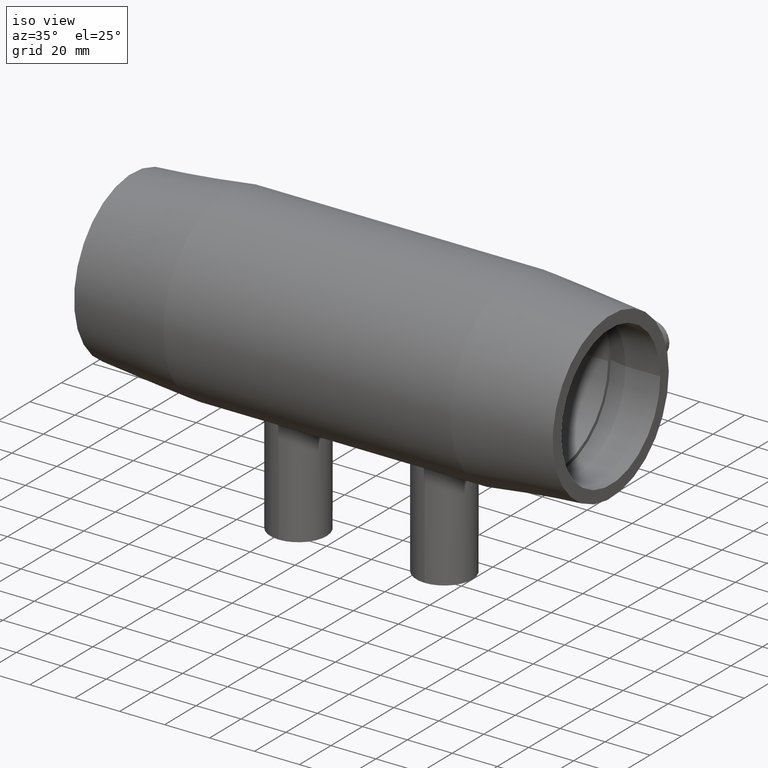
[diagram: clean part render]
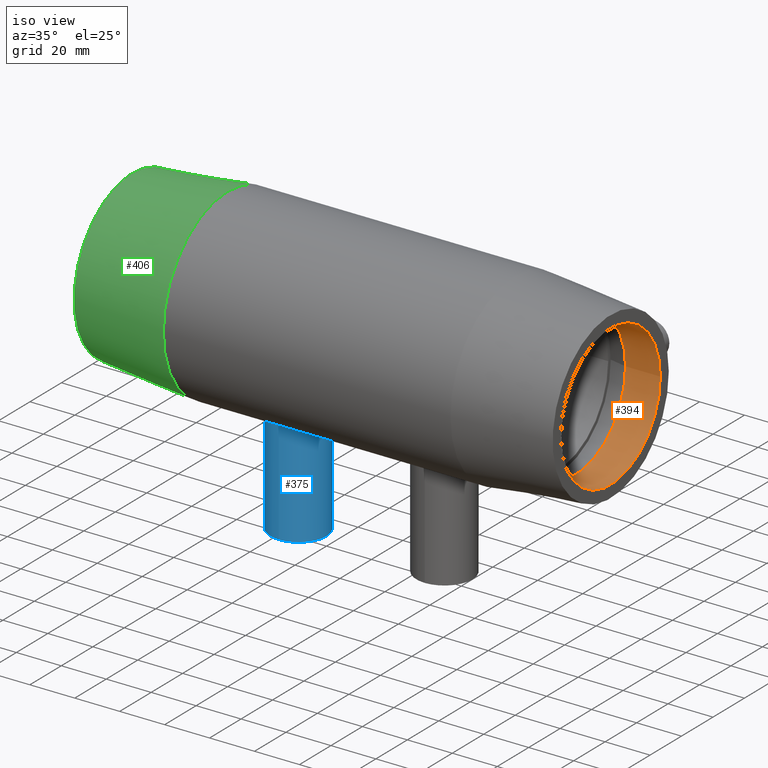
[diagram: same view with three faces highlighted in distinct colors, each labeled with its STEP entity id]
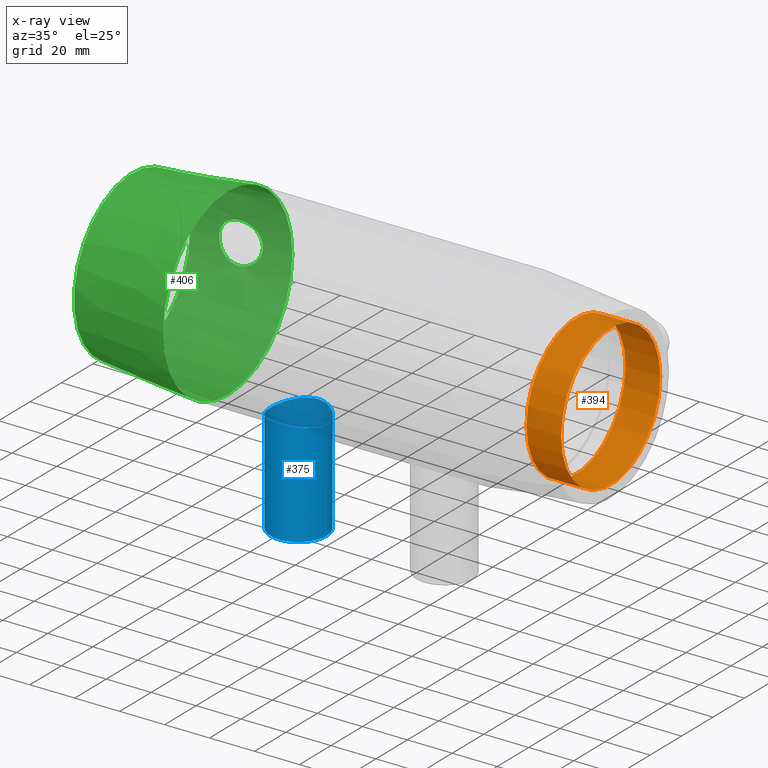
[diagram: x-ray of the same camera — body ghosted, the three highlighted faces saturated]
A machine part, iso view with three faces highlighted in distinct colors.
The next image is the same camera in x-ray (body ghosted, the three faces saturated) — at least one of them is partly hidden behind the body in this view.
Their STEP definitions:

[orange] entity #394 — the highlighted cylindrical surface (bore or boss wall) has radius 31.5 mm, axis along (1, 0, 0).
#57=FACE_BOUND('',#181,.T.);
#90=CIRCLE('',#447,31.5);
#91=CIRCLE('',#449,31.5);
#124=FACE_OUTER_BOUND('',#180,.T.);
#180=EDGE_LOOP('',(#330));
#181=EDGE_LOOP('',(#331));
#238=VERTEX_POINT('',#869);
#239=VERTEX_POINT('',#872);
#274=EDGE_CURVE('',#238,#238,#90,.T.);
#275=EDGE_CURVE('',#239,#239,#91,.T.);
#330=ORIENTED_EDGE('',*,*,#275,.F.);
#331=ORIENTED_EDGE('',*,*,#274,.T.);
#368=CYLINDRICAL_SURFACE('',#448,31.5);
#394=ADVANCED_FACE('',(#124,#57),#368,.F.);
#447=AXIS2_PLACEMENT_3D('',#870,#551,#552);
#448=AXIS2_PLACEMENT_3D('',#871,#553,#554);
#449=AXIS2_PLACEMENT_3D('',#873,#555,#556);
#551=DIRECTION('center_axis',(1.,0.,0.));
#552=DIRECTION('ref_axis',(0.,0.,-1.));
#553=DIRECTION('center_axis',(1.,0.,0.));
#554=DIRECTION('ref_axis',(0.,1.,0.));
#555=DIRECTION('center_axis',(1.,0.,0.));
#556=DIRECTION('ref_axis',(0.,0.,-1.));
#869=CARTESIAN_POINT('',(106.5,31.5,0.));
#870=CARTESIAN_POINT('Origin',(106.5,0.,0.));
#871=CARTESIAN_POINT('Origin',(98.7666666666667,0.,0.));
#872=CARTESIAN_POINT('',(91.0333333333333,31.5,0.));
#873=CARTESIAN_POINT('Origin',(91.0333333333334,0.,0.));

[blue] entity #375 — the highlighted cylindrical surface (bore or boss wall) has radius 12.5 mm, axis along (0, 0, 1).
#37=FACE_BOUND('',#142,.T.);
#75=CIRCLE('',#414,12.5);
#105=FACE_OUTER_BOUND('',#141,.T.);
#141=EDGE_LOOP('',(#291));
#142=EDGE_LOOP('',(#292));
#211=B_SPLINE_CURVE_WITH_KNOTS('',3,(#684,#685,#686,#687,#688,#689,#690,
#691,#692,#693,#694,#695,#696,#697,#698,#699,#700,#701,#702,#703,#704,#705,
#706,#707,#708,#709,#710,#711,#712,#713,#714,#715,#716,#717),
 .UNSPECIFIED.,.T.,.F.,(4,2,2,2,2,2,2,2,2,2,2,2,2,2,2,2,4),(0.,0.474199388686049,
0.948398777372098,1.4223826141883,1.8963664510045,2.37050207170436,2.84463769240422,
3.31885910039788,3.79308050839154,4.2673019163852,4.74152332437886,5.21565894507872,
5.68979456577858,6.16377840259478,6.63776223941098,7.11196162809703,7.58616101678308),
 .UNSPECIFIED.);
#219=VERTEX_POINT('',#681);
#220=VERTEX_POINT('',#683);
#255=EDGE_CURVE('',#219,#219,#75,.T.);
#256=EDGE_CURVE('',#220,#220,#211,.T.);
#291=ORIENTED_EDGE('',*,*,#255,.F.);
#292=ORIENTED_EDGE('',*,*,#256,.F.);
#361=CYLINDRICAL_SURFACE('',#413,12.5);
#375=ADVANCED_FACE('',(#105,#37),#361,.T.);
#413=AXIS2_PLACEMENT_3D('',#680,#483,#484);
#414=AXIS2_PLACEMENT_3D('',#682,#485,#486);
#483=DIRECTION('center_axis',(0.,0.,1.));
#484=DIRECTION('ref_axis',(-1.,0.,0.));
#485=DIRECTION('center_axis',(0.,0.,-1.));
#486=DIRECTION('ref_axis',(-1.,0.,0.));
#680=CARTESIAN_POINT('Origin',(-32.5,0.0537321586506889,-86.));
#681=CARTESIAN_POINT('',(-20.,0.0537321586506904,-86.));
#682=CARTESIAN_POINT('Origin',(-32.5,0.0537321586506889,-86.));
#683=CARTESIAN_POINT('',(-32.5,-12.4462678413493,-39.0652072415006));
#684=CARTESIAN_POINT('Ctrl Pts',(-32.5,-12.4462678413493,-39.0652072415006));
#685=CARTESIAN_POINT('Ctrl Pts',(-30.9193353710465,-12.4462678413493,-39.0652072415006));
#686=CARTESIAN_POINT('Ctrl Pts',(-29.2407125123332,-12.1283091496617,-39.1707512053455));
#687=CARTESIAN_POINT('Ctrl Pts',(-26.1641516525794,-10.8495761796476,-39.5440300354946));
#688=CARTESIAN_POINT('Ctrl Pts',(-24.7652602330193,-9.88928541743211,-39.8055364580817));
#689=CARTESIAN_POINT('Ctrl Pts',(-22.5568694374313,-7.68071900702237,-40.2899999018732));
#690=CARTESIAN_POINT('Ctrl Pts',(-21.5964619831922,-6.28175578080044,-40.545510638029));
#691=CARTESIAN_POINT('Ctrl Pts',(-20.3177606559884,-3.20488661626602,-40.903882337181));
#692=CARTESIAN_POINT('Ctrl Pts',(-20.,-1.5262126072778,-41.0020353742114));
#693=CARTESIAN_POINT('Ctrl Pts',(-20.,1.63418287042356,-40.9978935445276));
#694=CARTESIAN_POINT('Ctrl Pts',(-20.3179430236691,3.31309245740089,-40.8952810046333));
#695=CARTESIAN_POINT('Ctrl Pts',(-21.5969487685503,6.39008856242263,-40.5285992645883));
#696=CARTESIAN_POINT('Ctrl Pts',(-22.5574688077978,7.7889590661777,-40.2692316378241));
#697=CARTESIAN_POINT('Ctrl Pts',(-24.7657706556457,9.99708372941323,-39.7786083187623));
#698=CARTESIAN_POINT('Ctrl Pts',(-26.1644262120368,10.9571741946424,-39.5143587423706));
#699=CARTESIAN_POINT('Ctrl Pts',(-29.2406884834447,12.2357438975618,-39.1373325958867));
#700=CARTESIAN_POINT('Ctrl Pts',(-30.9192619733545,12.5537321586507,-39.0308058959697));
#701=CARTESIAN_POINT('Ctrl Pts',(-34.0807380266455,12.5537321586507,-39.0308058959697));
#702=CARTESIAN_POINT('Ctrl Pts',(-35.7593115165554,12.2357438975618,-39.1373325958867));
#703=CARTESIAN_POINT('Ctrl Pts',(-38.8355737879633,10.9571741946424,-39.5143587423706));
#704=CARTESIAN_POINT('Ctrl Pts',(-40.2342293443543,9.99708372941323,-39.7786083187623));
#705=CARTESIAN_POINT('Ctrl Pts',(-42.4425311922022,7.7889590661777,-40.2692316378241));
#706=CARTESIAN_POINT('Ctrl Pts',(-43.4030512314497,6.39008856242263,-40.5285992645883));
#707=CARTESIAN_POINT('Ctrl Pts',(-44.6820569763309,3.31309245740089,-40.8952810046333));
#708=CARTESIAN_POINT('Ctrl Pts',(-45.,1.63418287042356,-40.9978935445276));
#709=CARTESIAN_POINT('Ctrl Pts',(-45.,-1.5262126072778,-41.0020353742114));
#710=CARTESIAN_POINT('Ctrl Pts',(-44.6822393440116,-3.20488661626602,-40.903882337181));
#711=CARTESIAN_POINT('Ctrl Pts',(-43.4035380168078,-6.28175578080045,-40.545510638029));
#712=CARTESIAN_POINT('Ctrl Pts',(-42.4431305625687,-7.68071900702237,-40.2899999018732));
#713=CARTESIAN_POINT('Ctrl Pts',(-40.2347397669807,-9.88928541743212,-39.8055364580817));
#714=CARTESIAN_POINT('Ctrl Pts',(-38.8358483474206,-10.8495761796476,-39.5440300354946));
#715=CARTESIAN_POINT('Ctrl Pts',(-35.7592874876668,-12.1283091496617,-39.1707512053455));
#716=CARTESIAN_POINT('Ctrl Pts',(-34.0806646289535,-12.4462678413493,-39.0652072415006));
#717=CARTESIAN_POINT('Ctrl Pts',(-32.5,-12.4462678413493,-39.0652072415006));

[green] entity #406 — the highlighted conical surface has half-angle 5.497 deg.
#20=CONICAL_SURFACE('',#472,38.95,5.49745009090749);
#71=FACE_BOUND('',#207,.T.);
#72=FACE_BOUND('',#208,.T.);
#88=CIRCLE('',#443,41.);
#102=CIRCLE('',#471,36.9);
#136=FACE_OUTER_BOUND('',#206,.T.);
#206=EDGE_LOOP('',(#356));
#207=EDGE_LOOP('',(#357));
#208=EDGE_LOOP('',(#358));
#214=B_SPLINE_CURVE_WITH_KNOTS('',3,(#826,#827,#828,#829,#830,#831,#832,
#833,#834,#835,#836,#837,#838,#839,#840,#841,#842,#843,#844,#845,#846,#847,
#848,#849,#850,#851,#852,#853,#854,#855,#856,#857,#858,#859),
 .UNSPECIFIED.,.T.,.F.,(4,2,2,2,2,2,2,2,2,2,2,2,2,2,2,2,4),(0.,0.338247719287762,
0.676495438575523,1.01658459775465,1.35667375693378,1.69676291611291,2.03685207529204,
2.3750997945798,2.71334751386756,3.06936961066205,3.42539170745654,3.77517379864653,
4.12495588983651,4.4747379810265,4.82452007221649,5.18054216901098,5.53656426580547),
 .UNSPECIFIED.);
#234=VERTEX_POINT('',#825);
#236=VERTEX_POINT('',#863);
#250=VERTEX_POINT('',#905);
#270=EDGE_CURVE('',#234,#234,#214,.T.);
#272=EDGE_CURVE('',#236,#236,#88,.T.);
#286=EDGE_CURVE('',#250,#250,#102,.T.);
#356=ORIENTED_EDGE('',*,*,#272,.F.);
#357=ORIENTED_EDGE('',*,*,#270,.T.);
#358=ORIENTED_EDGE('',*,*,#286,.T.);
#406=ADVANCED_FACE('',(#136,#71,#72),#20,.T.);
#443=AXIS2_PLACEMENT_3D('',#864,#543,#544);
#471=AXIS2_PLACEMENT_3D('',#906,#599,#600);
#472=AXIS2_PLACEMENT_3D('',#907,#601,#602);
#543=DIRECTION('center_axis',(1.,0.,0.));
#544=DIRECTION('ref_axis',(0.,0.,-1.));
#599=DIRECTION('center_axis',(1.,0.,0.));
#600=DIRECTION('ref_axis',(0.,0.,-1.));
#601=DIRECTION('center_axis',(1.,0.,0.));
#602=DIRECTION('ref_axis',(0.,1.,0.));
#825=CARTESIAN_POINT('',(-85.4831672617493,37.8263711285099,9.17310561938486));
#826=CARTESIAN_POINT('Ctrl Pts',(-85.4831672617491,37.82637112851,9.17310561938486));
#827=CARTESIAN_POINT('Ctrl Pts',(-86.6054737162965,37.7213982959446,9.14764912298936));
#828=CARTESIAN_POINT('Ctrl Pts',(-87.8007700714036,37.666104856619,8.89668174075734));
#829=CARTESIAN_POINT('Ctrl Pts',(-89.9915910784673,37.6650176261856,7.93456706222269));
#830=CARTESIAN_POINT('Ctrl Pts',(-90.987166640629,37.7160093406769,7.2235420150381));
#831=CARTESIAN_POINT('Ctrl Pts',(-92.5567598701681,37.8383539921926,5.60055533099966));
#832=CARTESIAN_POINT('Ctrl Pts',(-93.2360039237725,37.917652568284,4.57728565010471));
#833=CARTESIAN_POINT('Ctrl Pts',(-94.135777238011,38.0342151413606,2.34390134490362));
#834=CARTESIAN_POINT('Ctrl Pts',(-94.3562686347066,38.0687628778804,1.13363053059709));
#835=CARTESIAN_POINT('Ctrl Pts',(-94.3562686347066,38.0687628778804,-1.13363053059709));
#836=CARTESIAN_POINT('Ctrl Pts',(-94.135777238011,38.0342151413606,-2.34390134490362));
#837=CARTESIAN_POINT('Ctrl Pts',(-93.2360039237725,37.917652568284,-4.57728565010471));
#838=CARTESIAN_POINT('Ctrl Pts',(-92.5567598701681,37.8383539921926,-5.60055533099966));
#839=CARTESIAN_POINT('Ctrl Pts',(-90.987166640629,37.7160093406769,-7.2235420150381));
#840=CARTESIAN_POINT('Ctrl Pts',(-89.9915910784673,37.6650176261856,-7.93456706222269));
#841=CARTESIAN_POINT('Ctrl Pts',(-87.8007700714036,37.666104856619,-8.89668174075734));
#842=CARTESIAN_POINT('Ctrl Pts',(-86.6054737162965,37.7213982959447,-9.14764912298936));
#843=CARTESIAN_POINT('Ctrl Pts',(-84.3018853952068,37.9368601157973,-9.19989981401491));
#844=CARTESIAN_POINT('Ctrl Pts',(-83.0487854844971,38.1163640946757,-8.98152482946287));
#845=CARTESIAN_POINT('Ctrl Pts',(-80.7522875493204,38.5494739761632,-8.05116317295427));
#846=CARTESIAN_POINT('Ctrl Pts',(-79.7080732701226,38.7996214669498,-7.3395847867024));
#847=CARTESIAN_POINT('Ctrl Pts',(-78.0743872571477,39.2322845098078,-5.70282615049358));
#848=CARTESIAN_POINT('Ctrl Pts',(-77.3692580585788,39.4442977549567,-4.67267440459639));
#849=CARTESIAN_POINT('Ctrl Pts',(-76.4301925541448,39.7377645235518,-2.4044850766939));
#850=CARTESIAN_POINT('Ctrl Pts',(-76.1966403464478,39.8165205300367,-1.16594030396662));
#851=CARTESIAN_POINT('Ctrl Pts',(-76.1966403464478,39.8165205300367,1.16594030396662));
#852=CARTESIAN_POINT('Ctrl Pts',(-76.4301925541448,39.7377645235517,2.4044850766939));
#853=CARTESIAN_POINT('Ctrl Pts',(-77.3692580585788,39.4442977549567,4.67267440459639));
#854=CARTESIAN_POINT('Ctrl Pts',(-78.0743872571477,39.2322845098078,5.70282615049358));
#855=CARTESIAN_POINT('Ctrl Pts',(-79.7080732701226,38.7996214669498,7.3395847867024));
#856=CARTESIAN_POINT('Ctrl Pts',(-80.7522875493204,38.5494739761632,8.05116317295425));
#857=CARTESIAN_POINT('Ctrl Pts',(-83.0487854844971,38.1163640946757,8.98152482946286));
#858=CARTESIAN_POINT('Ctrl Pts',(-84.3018853952068,37.9368601157973,9.19989981401491));
#859=CARTESIAN_POINT('Ctrl Pts',(-85.4831672617491,37.82637112851,9.17310561938486));
#863=CARTESIAN_POINT('',(-63.9,41.,0.));
#864=CARTESIAN_POINT('Origin',(-63.9,0.,0.));
#905=CARTESIAN_POINT('',(-106.5,36.9,0.));
#906=CARTESIAN_POINT('Origin',(-106.5,0.,0.));
#907=CARTESIAN_POINT('Origin',(-85.2,0.,0.));